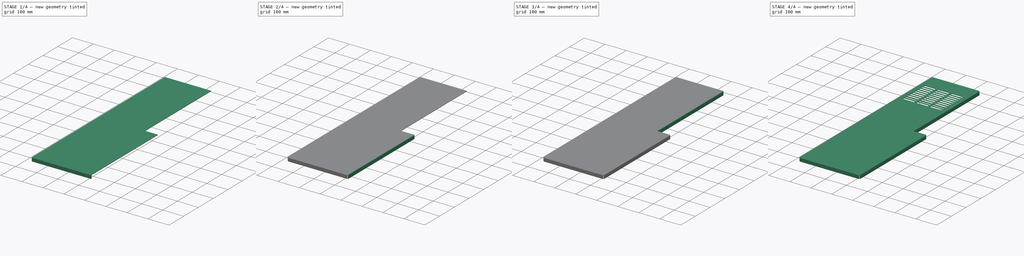
[diagram: build sequence overview — one tinted view per stage of 4, left to right]
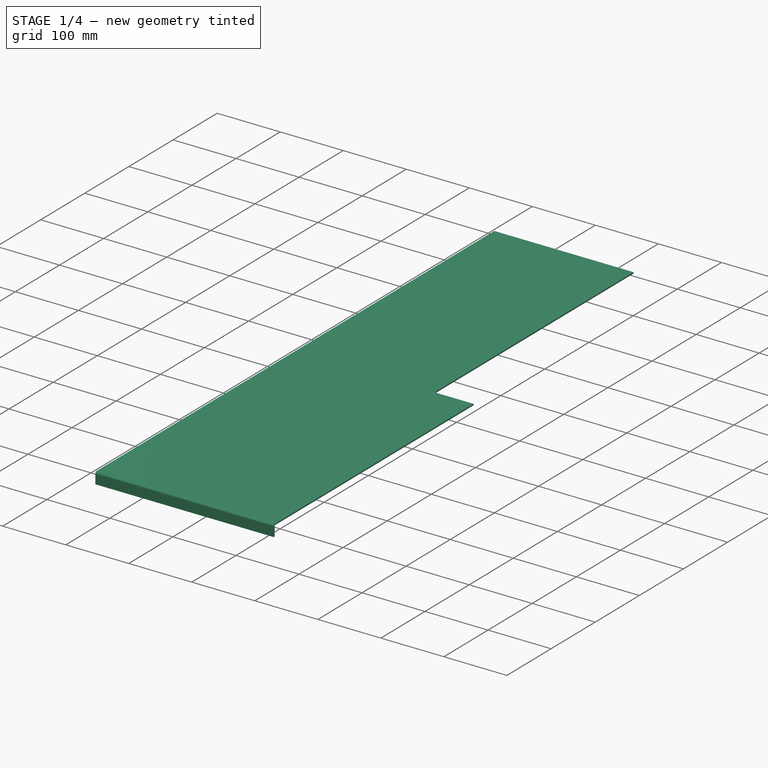
[diagram: stage 1 of 4 — iso view after this stage's code; geometry added in this stage tinted green]
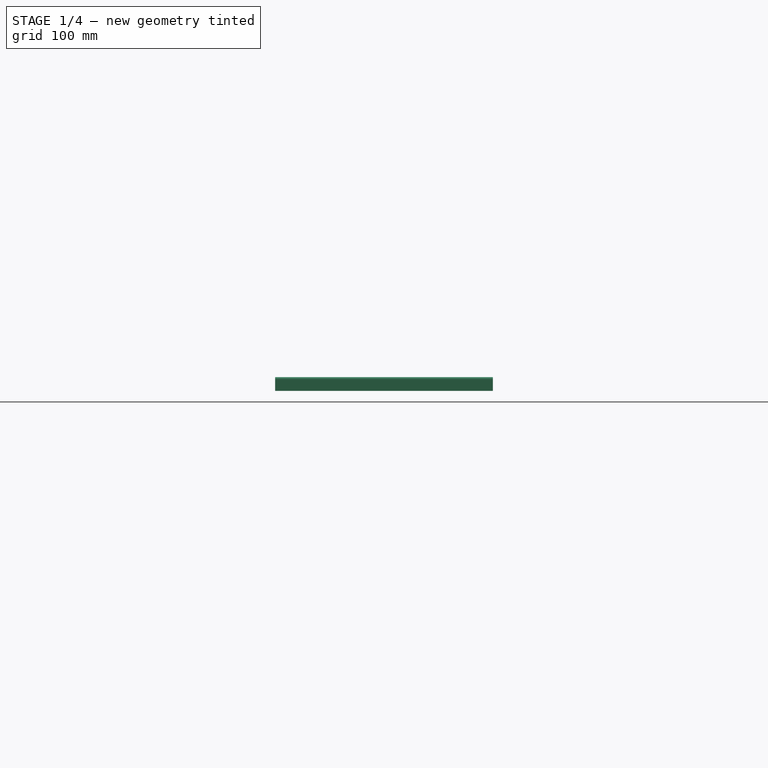
[diagram: stage 1 of 4 — front view after this stage's code; geometry added in this stage tinted green]
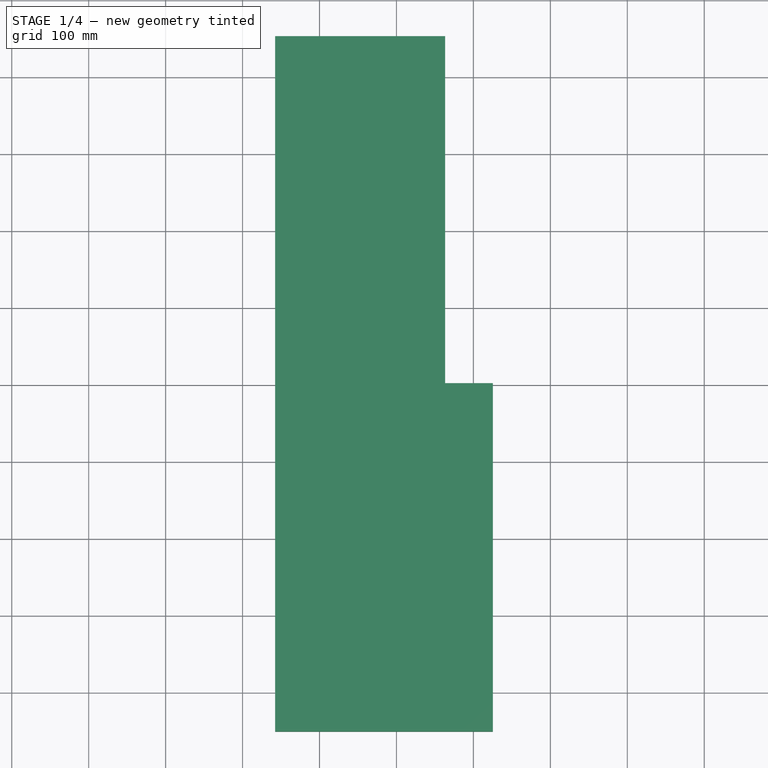
[diagram: stage 1 of 4 — top view after this stage's code; geometry added in this stage tinted green]
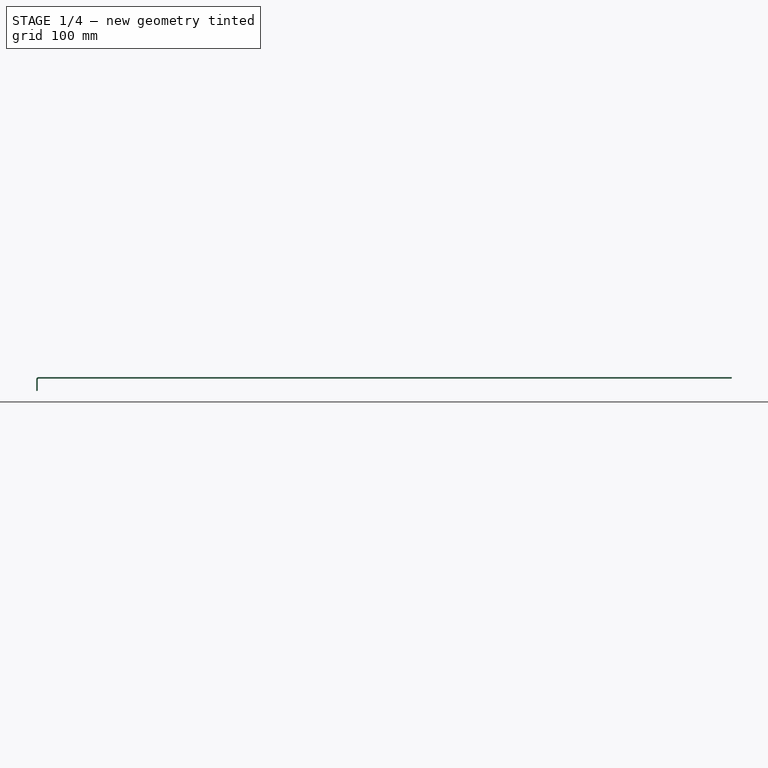
[diagram: stage 1 of 4 — right view after this stage's code; geometry added in this stage tinted green]
FCSTD DOCUMENT  (FreeCAD 0.16R6698 (Git))
Label: Top_Bended_Coating
License: All rights reserved
LicenseURL: http://en.wikipedia.org/wiki/All_rights_reserved
objects: Part::FeaturePython×6, Sketcher::SketchObject×2, PartDesign::Pad×1, PartDesign::Pocket×1, PartDesign::LinearPattern×1
note: 13 computed .brp shape members not serialized (recipe doc carries the construction recipe); baked Part::Feature solids carry a one-line shape summary decoded from their .brp

FEATURE [Sketcher::SketchObject] Sketch
  sketch-geometry (6):
    g0: LineSegment StartX=-157.697 StartY=453.5 StartZ=0 EndX=63.3028 EndY=453.5 EndZ=0
    g1: LineSegment StartX=63.3028 StartY=453.5 StartZ=0 EndX=63.3028 EndY=2.5 EndZ=0
    g2: LineSegment StartX=125.303 StartY=-447.5 StartZ=0 EndX=-157.697 EndY=-447.5 EndZ=0
    g3: LineSegment StartX=-157.697 StartY=-447.5 StartZ=0 EndX=-157.697 EndY=453.5 EndZ=0
    g4: LineSegment StartX=125.303 StartY=-447.5 StartZ=0 EndX=125.303 EndY=2.5 EndZ=0
    g5: LineSegment StartX=125.303 StartY=2.5 StartZ=0 EndX=63.3028 EndY=2.5 EndZ=0
  constraints (18):
    c: Coincident(g0,g1)
    c: Coincident(g2,g3)
    c: Coincident(g3,g0)
    c: Horizontal(g0)
    c: Horizontal(g2)
    c: Vertical(g1)
    c: Vertical(g3)
    c: Coincident(g4,g5)
    c: Horizontal(g5)
    c: Vertical(g4)
    c: DistanceX(g0,g0) = 221
    c: DistanceY(g3,g3) = 901
    c: DistanceY(g4,g4) = 450
    c: PointOnObject(g1,g5)
    c: Coincident(g2,g4)
    c: DistanceX(g2,g2) = 283
    c: DistanceY(g2,g-1) = 447.5
    c: Coincident(g5,g1)
FEATURE [PartDesign::Pad] Pad
  Length = 2
  Length2 = 100
  Sketch = -> Sketch
  Type = 0
FEATURE [Part::FeaturePython] Bend  # WARN: FeaturePython — macro-defined, semantics opaque (R4)
  angle = 90
  baseObject = -> Pad [Face1]
  gap1 = 0
  gap2 = 0
  invert = true
  length = 15
  radius = 1
  reliefd = 1
  reliefw = 0.5
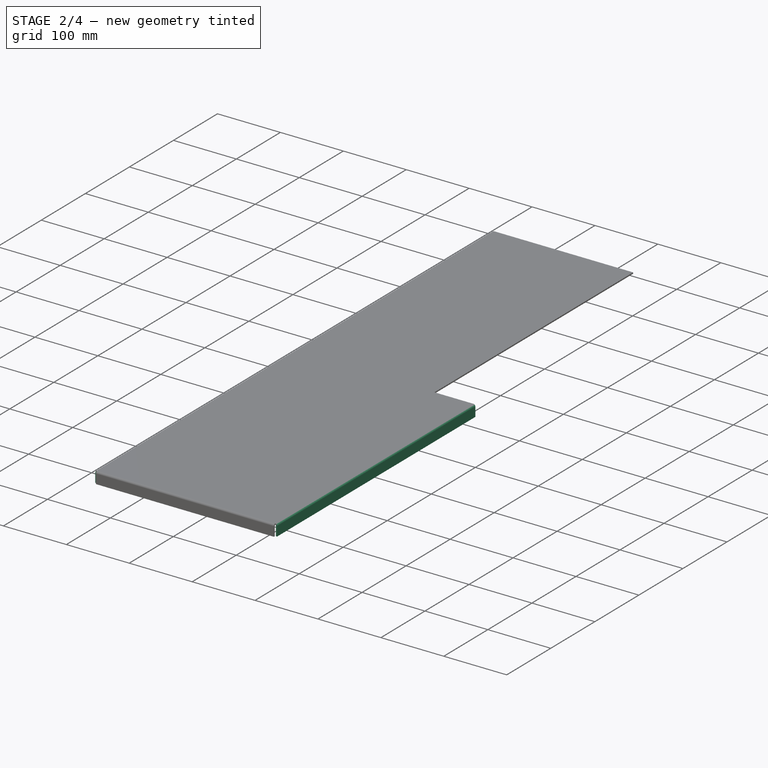
[diagram: stage 2 of 4 — iso view after this stage's code; geometry added in this stage tinted green]
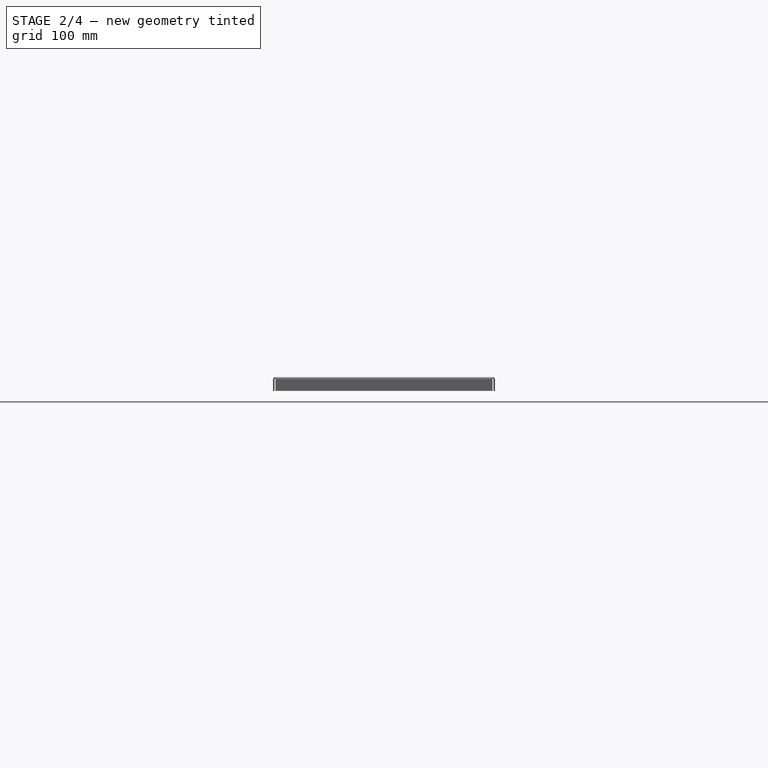
[diagram: stage 2 of 4 — front view after this stage's code; geometry added in this stage tinted green]
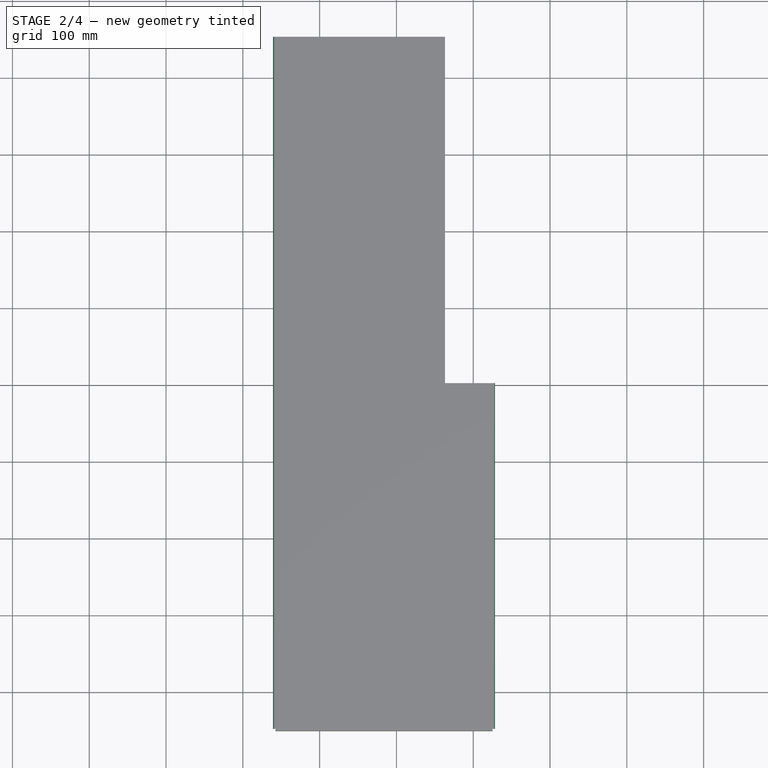
[diagram: stage 2 of 4 — top view after this stage's code; geometry added in this stage tinted green]
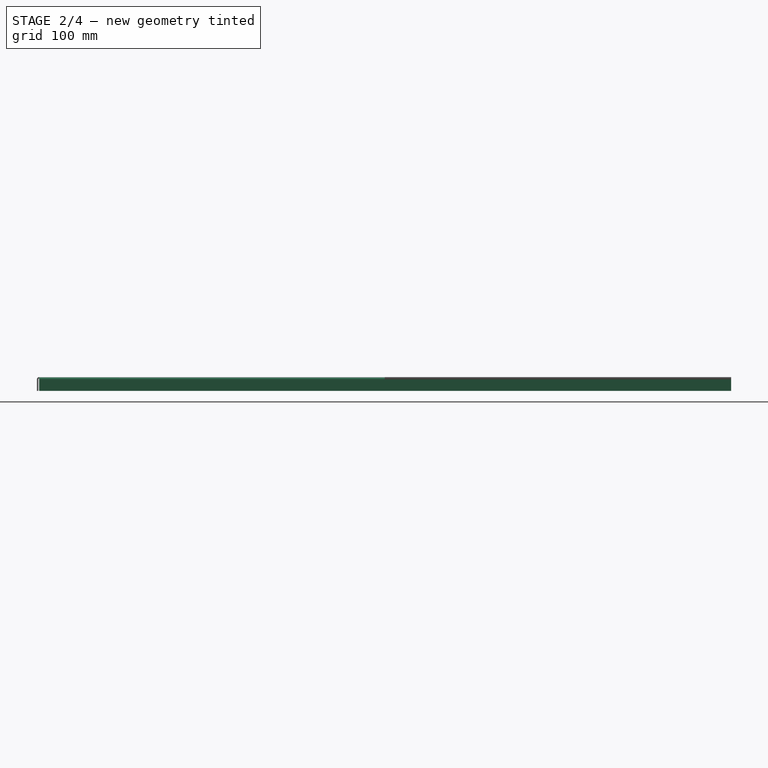
[diagram: stage 2 of 4 — right view after this stage's code; geometry added in this stage tinted green]
FEATURE [Part::FeaturePython] Bend001  # WARN: FeaturePython — macro-defined, semantics opaque (R4)
  angle = 90
  baseObject = -> Bend [Face11]
  gap1 = 0
  gap2 = 0
  invert = true
  length = 15
  radius = 1
  reliefd = 1
  reliefw = 0.5
FEATURE [Part::FeaturePython] Bend002  # WARN: FeaturePython — macro-defined, semantics opaque (R4)
  angle = 90
  baseObject = -> Bend001 [Face19]
  gap1 = 0
  gap2 = 0
  invert = true
  length = 15
  radius = 1
  reliefd = 1
  reliefw = 0.5
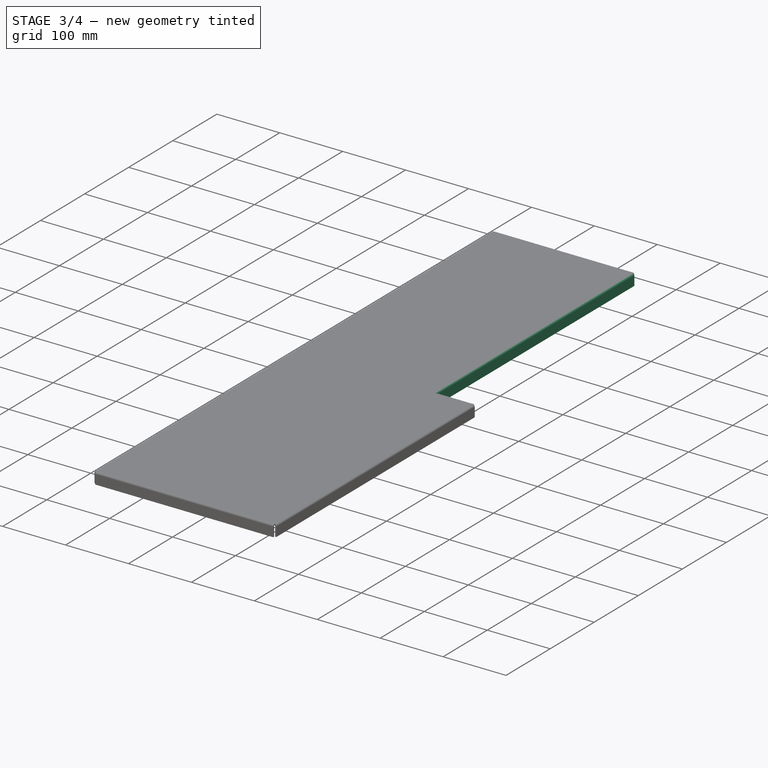
[diagram: stage 3 of 4 — iso view after this stage's code; geometry added in this stage tinted green]
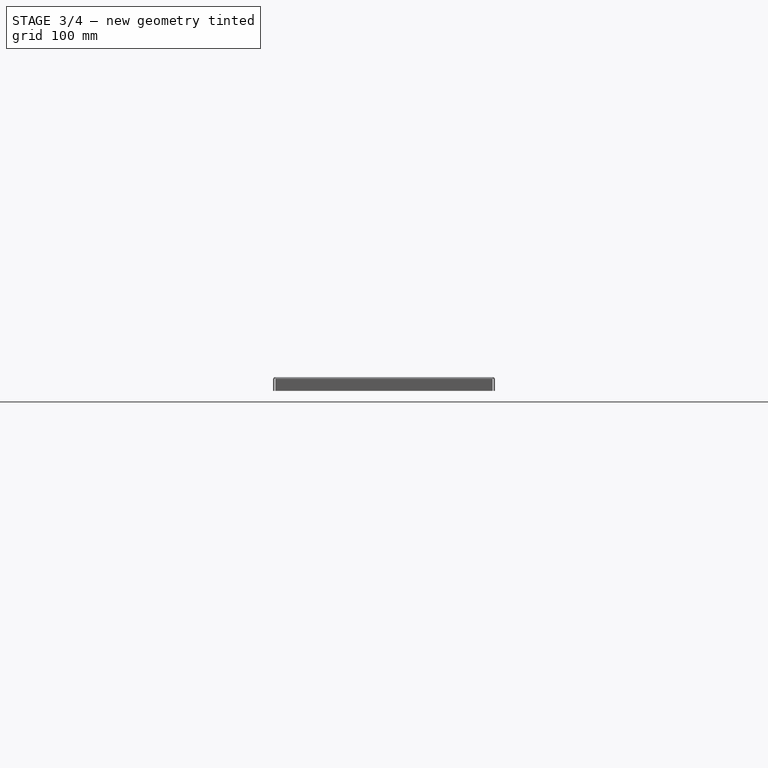
[diagram: stage 3 of 4 — front view after this stage's code; geometry added in this stage tinted green]
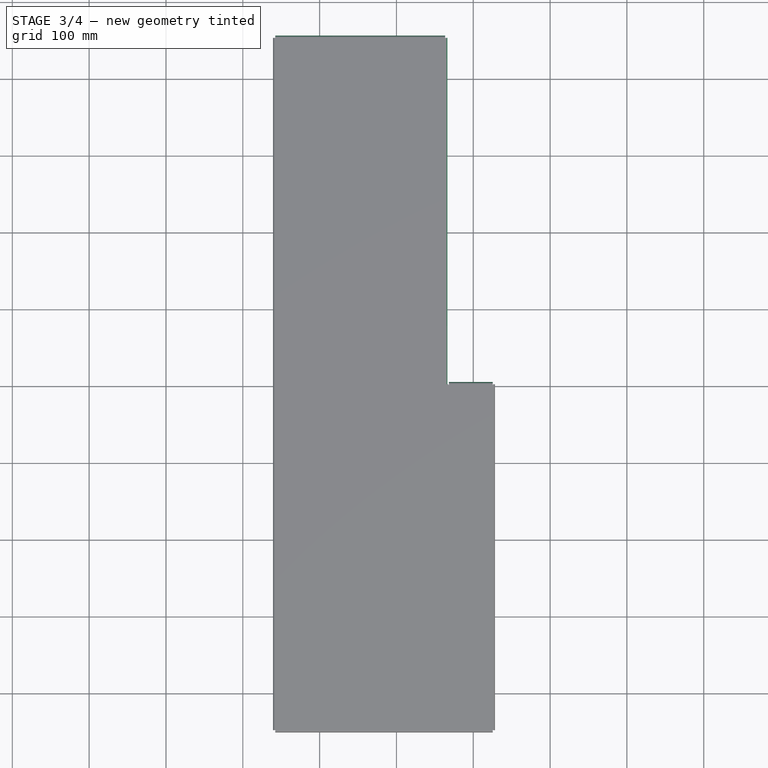
[diagram: stage 3 of 4 — top view after this stage's code; geometry added in this stage tinted green]
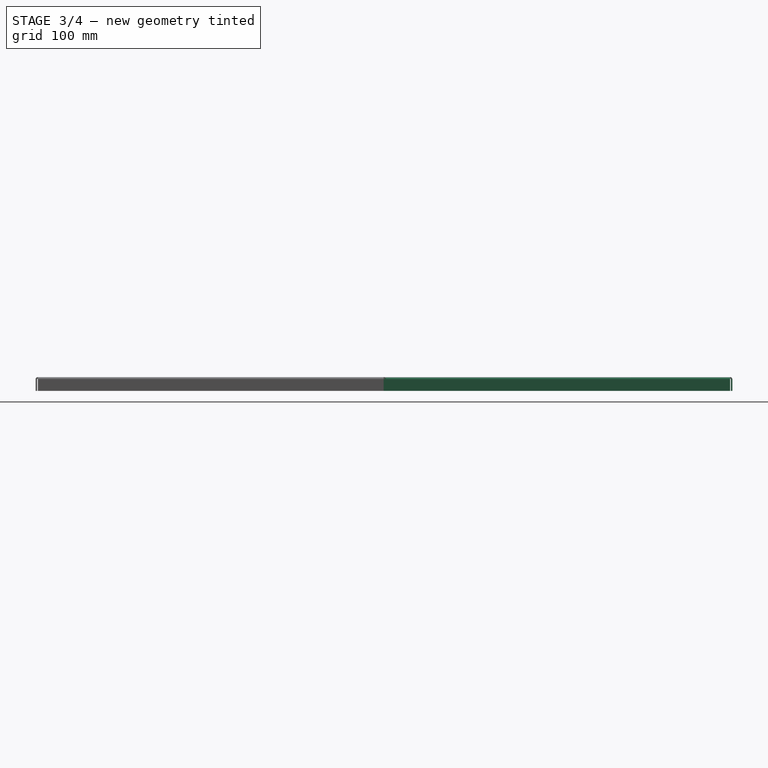
[diagram: stage 3 of 4 — right view after this stage's code; geometry added in this stage tinted green]
FEATURE [Part::FeaturePython] Bend003  # WARN: FeaturePython — macro-defined, semantics opaque (R4)
  angle = 90
  baseObject = -> Bend002 [Face11]
  gap1 = 0
  gap2 = 5
  invert = true
  length = 15
  radius = 1
  reliefd = 1
  reliefw = 0.5
FEATURE [Part::FeaturePython] Bend004  # WARN: FeaturePython — macro-defined, semantics opaque (R4)
  angle = 90
  baseObject = -> Bend003 [Face19]
  gap1 = 0
  gap2 = 0
  invert = true
  length = 15
  radius = 1
  reliefd = 1
  reliefw = 0.5
FEATURE [Part::FeaturePython] Bend005  # WARN: FeaturePython — macro-defined, semantics opaque (R4)
  angle = 90
  baseObject = -> Bend004 [Face10]
  gap1 = 0
  gap2 = 0
  invert = true
  length = 15
  radius = 1
  reliefd = 1
  reliefw = 0.5
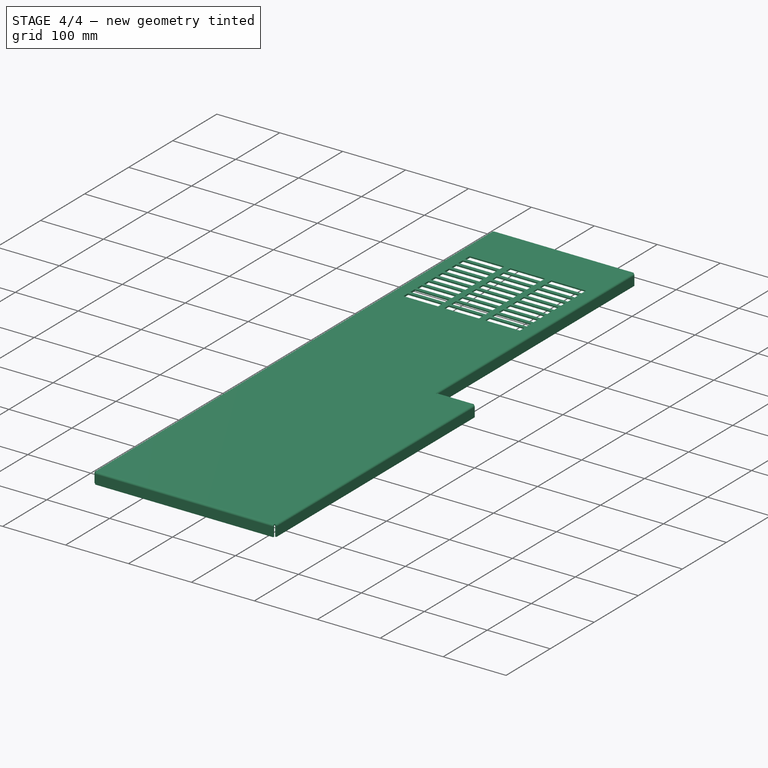
[diagram: stage 4 of 4 — iso view after this stage's code; geometry added in this stage tinted green]
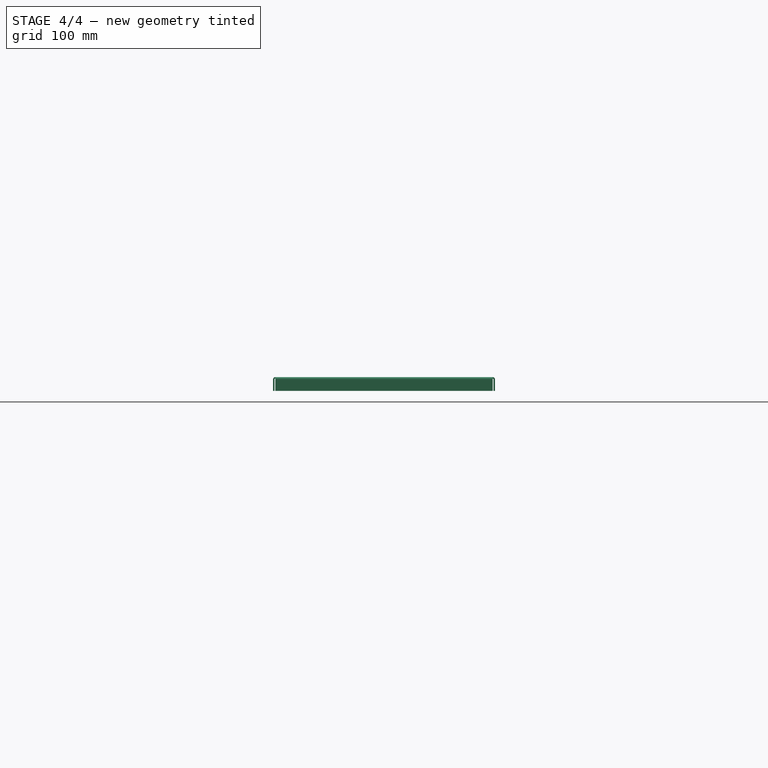
[diagram: stage 4 of 4 — front view after this stage's code; geometry added in this stage tinted green]
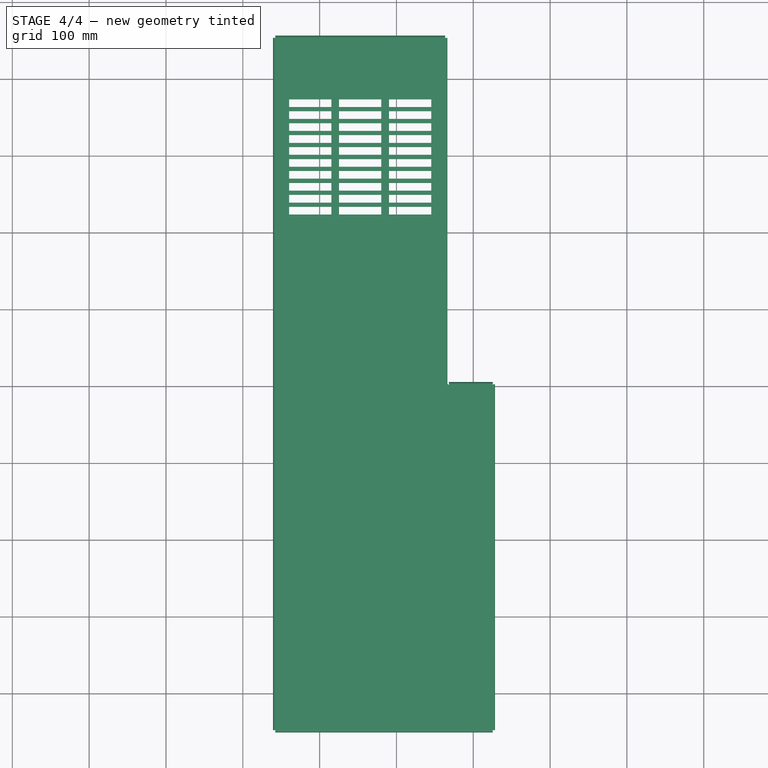
[diagram: stage 4 of 4 — top view after this stage's code; geometry added in this stage tinted green]
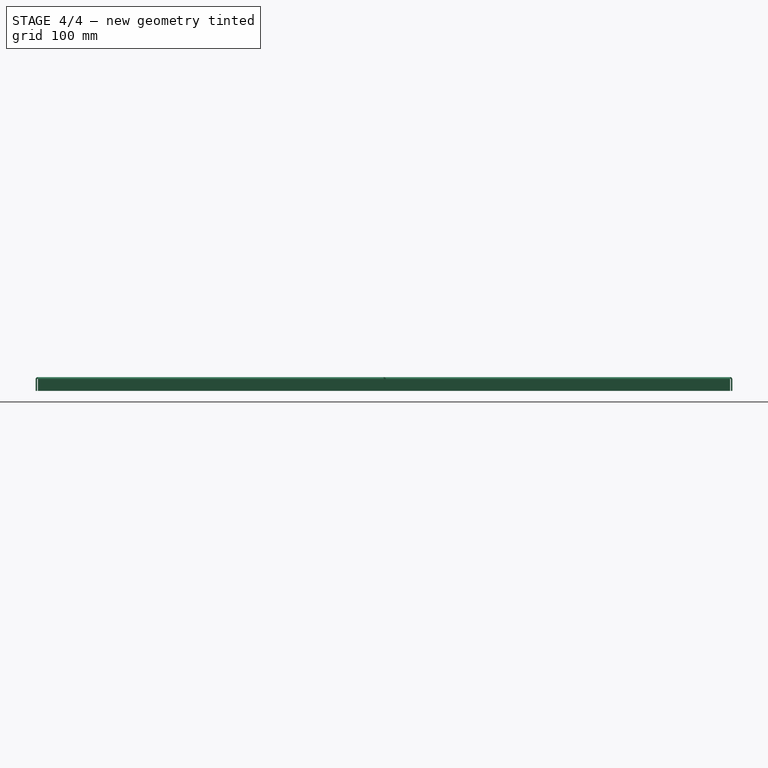
[diagram: stage 4 of 4 — right view after this stage's code; geometry added in this stage tinted green]
FEATURE [Sketcher::SketchObject] Sketch001
  ExternalGeometry = -> [Bend005]
  Placement = pos=(0,0,2) rot=(0,0,1;0rad)
  Support = -> Bend005 [Face13]
  sketch-geometry (12):
    g0: LineSegment StartX=-139.697 StartY=373.5 StartZ=0 EndX=-84.6972 EndY=373.5 EndZ=0
    g1: LineSegment StartX=45.3028 StartY=373.5 StartZ=0 EndX=45.3028 EndY=363.5 EndZ=0
    g2: LineSegment StartX=45.3028 StartY=363.5 StartZ=0 EndX=-9.69716 EndY=363.5 EndZ=0
    g3: LineSegment StartX=-139.697 StartY=363.5 StartZ=0 EndX=-139.697 EndY=373.5 EndZ=0
    g4: LineSegment StartX=-84.6972 StartY=373.5 StartZ=0 EndX=-84.6972 EndY=363.5 EndZ=0
    g5: LineSegment StartX=-19.6972 StartY=373.5 StartZ=0 EndX=-19.6972 EndY=363.5 EndZ=0
    g6: LineSegment StartX=-9.69716 StartY=363.5 StartZ=0 EndX=-9.69716 EndY=373.5 EndZ=0
    g7: LineSegment StartX=-74.6972 StartY=363.5 StartZ=0 EndX=-74.6972 EndY=373.5 EndZ=0
    g8: LineSegment StartX=-74.6972 StartY=373.5 StartZ=0 EndX=-19.6972 EndY=373.5 EndZ=0
    g9: LineSegment StartX=-84.6972 StartY=363.5 StartZ=0 EndX=-139.697 EndY=363.5 EndZ=0
    g10: LineSegment StartX=-19.6972 StartY=363.5 StartZ=0 EndX=-74.6972 EndY=363.5 EndZ=0
    g11: LineSegment StartX=-9.69716 StartY=373.5 StartZ=0 EndX=45.3028 EndY=373.5 EndZ=0
  constraints (34):
    c: Coincident(g11,g1)
    c: Coincident(g1,g2)
    c: Coincident(g9,g3)
    c: Coincident(g3,g0)
    c: Horizontal(g0)
    c: Horizontal(g2)
    c: Vertical(g1)
    c: Vertical(g3)
    c: Vertical(g4)
    c: PointOnObject(g5,g0)
    c: Vertical(g5)
    c: PointOnObject(g6,g0)
    c: Vertical(g6)
    c: Vertical(g7)
    c: Coincident(g0,g4)
    c: Coincident(g8,g7)
    c: Tangent(g0,g8)
    c: Coincident(g10,g7)
    c: Coincident(g9,g4)
    c: Tangent(g2,g9)
    c: Coincident(g2,g6)
    c: Coincident(g10,g5)
    c: Tangent(g2,g10)
    c: PointOnObject(g8,g5)
    c: PointOnObject(g11,g6)
    c: Tangent(g8,g11)
    c: DistanceY(g6,g6) = 10
    c: DistanceX(g0,g0) = 55
    c: DistanceX(g0,g7) = 10
    c: DistanceX(g8,g8) = 55
    c: DistanceX(g11,g11) = 55
    c: DistanceX(g5,g6) = 10
    c: DistanceX(g1,g-3) = 18
    c: DistanceY(g1,g-3) = 80
FEATURE [PartDesign::Pocket] Pocket
  Length = 5
  Sketch = -> Sketch001
  Type = 0
FEATURE [PartDesign::LinearPattern] LinearPattern
  Direction = -> Sketch001 [V_Axis]
  Length = 140
  Occurrences = 10
  Originals = -> [Pocket]
  Reversed = true
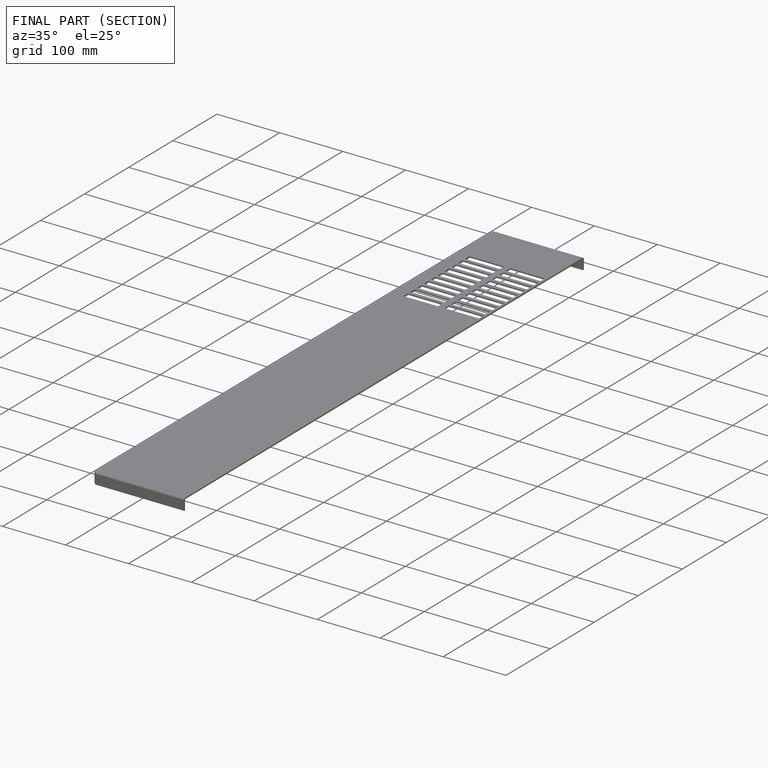
[diagram: finished part — half-section view (interior)]
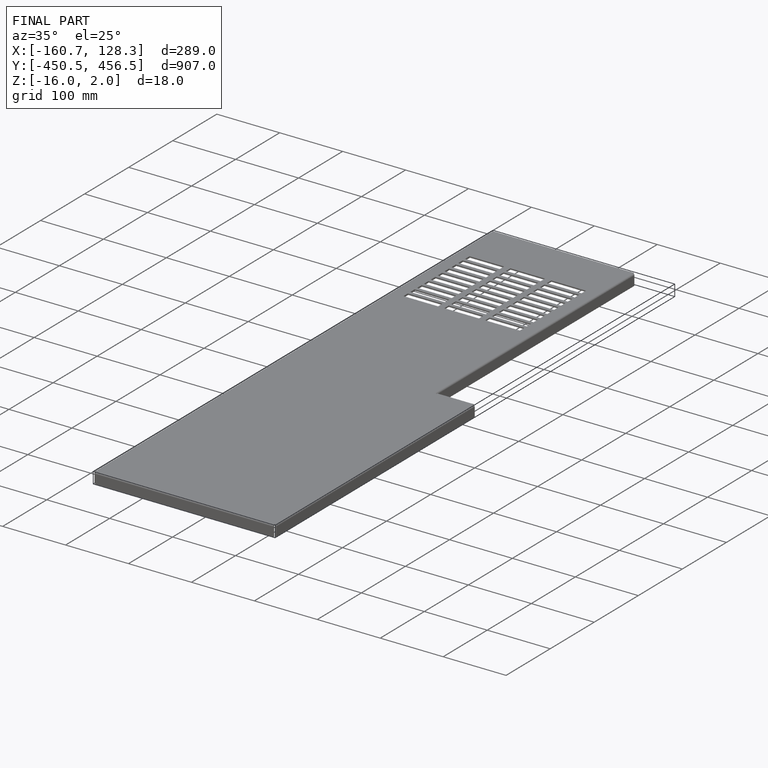
[diagram: finished part — iso view with bounding-box wireframe]
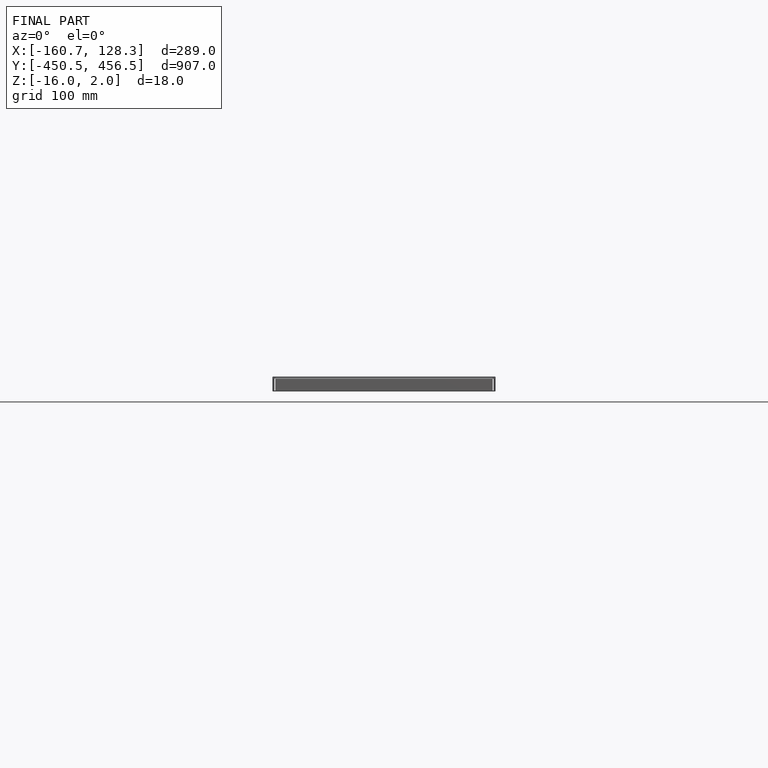
[diagram: finished part — front view with bounding-box wireframe]
